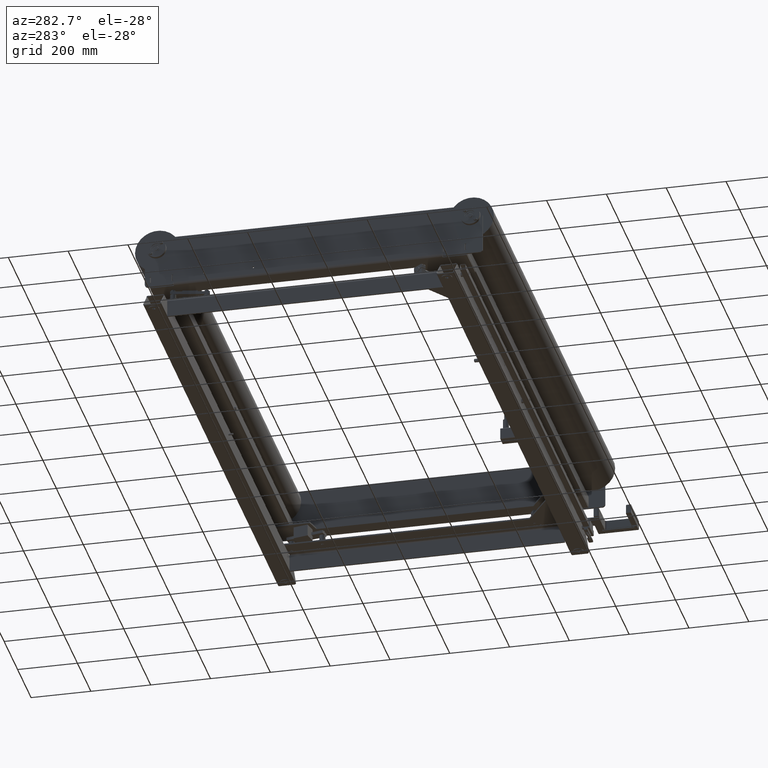
[diagram: clean part render]
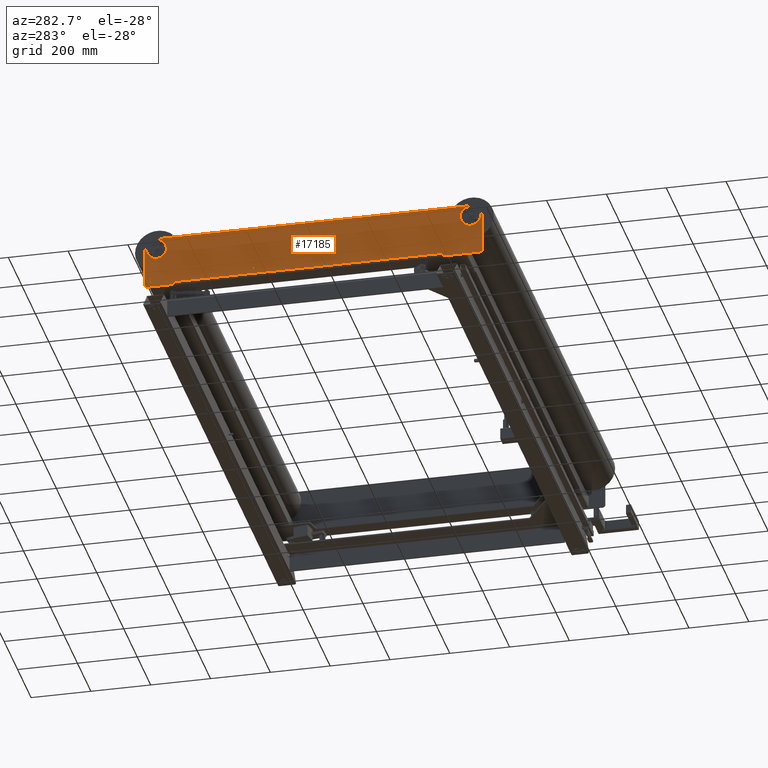
[diagram: same view with one face highlighted and labeled with its STEP entity id]
A machine part, auxiliary view. The second image highlights one B-rep face of the part: STEP entity #17185.
In plain terms, the highlighted planar face has unit normal (1, 0, 0).
Its self-contained STEP definition (entity closure, byte-faithful):
#15725=CARTESIAN_POINT('',(59.898830470336144,192.677669529663690,-4.0));
#15726=VERTEX_POINT('',#15725);
#15742=CARTESIAN_POINT('',(54.745830470336138,192.677669529663690,-4.0));
#15743=VERTEX_POINT('',#15742);
#15750=CARTESIAN_POINT('',(57.322330470336141,192.677669529663690,-4.0));
#15751=DIRECTION('',(0.0,0.0,1.0));
#15752=DIRECTION('',(1.0,0.0,0.0));
#15753=AXIS2_PLACEMENT_3D('',#15750,#15751,#15752);
#15754=CIRCLE('',#15753,2.576500000000000);
#15755=EDGE_CURVE('',#15726,#15743,#15754,.T.);
#15767=CARTESIAN_POINT('',(59.898830470336314,-892.677669529663720,-4.0));
#15768=VERTEX_POINT('',#15767);
#15784=CARTESIAN_POINT('',(54.745830470336308,-892.677669529663720,-4.0));
#15785=VERTEX_POINT('',#15784);
#15792=CARTESIAN_POINT('',(57.322330470336311,-892.677669529663720,-4.0));
#15793=DIRECTION('',(0.0,0.0,1.0));
#15794=DIRECTION('',(1.0,0.0,0.0));
#15795=AXIS2_PLACEMENT_3D('',#15792,#15793,#15794);
#15796=CIRCLE('',#15795,2.576500000000000);
#15797=EDGE_CURVE('',#15768,#15785,#15796,.T.);
#15809=CARTESIAN_POINT('',(90.101169529663522,157.322330470336310,-4.0));
#15810=VERTEX_POINT('',#15809);
#15826=CARTESIAN_POINT('',(95.254169529663514,157.322330470336310,-4.0));
#15827=VERTEX_POINT('',#15826);
#15834=CARTESIAN_POINT('',(92.677669529663518,157.322330470336310,-4.0));
#15835=DIRECTION('',(0.0,0.0,1.0));
#15836=DIRECTION('',(-1.0,0.0,0.0));
#15837=AXIS2_PLACEMENT_3D('',#15834,#15835,#15836);
#15838=CIRCLE('',#15837,2.576500000000000);
#15839=EDGE_CURVE('',#15810,#15827,#15838,.T.);
#15851=CARTESIAN_POINT('',(90.101169529663693,-857.322330470336280,-4.0));
#15852=VERTEX_POINT('',#15851);
#15868=CARTESIAN_POINT('',(95.254169529663685,-857.322330470336280,-4.0));
#15869=VERTEX_POINT('',#15868);
#15876=CARTESIAN_POINT('',(92.677669529663689,-857.322330470336280,-4.0));
#15877=DIRECTION('',(0.0,0.0,1.0));
#15878=DIRECTION('',(-1.0,0.0,0.0));
#15879=AXIS2_PLACEMENT_3D('',#15876,#15877,#15878);
#15880=CIRCLE('',#15879,2.576500000000000);
#15881=EDGE_CURVE('',#15852,#15869,#15880,.T.);
#16059=CARTESIAN_POINT('',(107.576499999999970,-635.0,-4.0));
#16060=VERTEX_POINT('',#16059);
#16069=CARTESIAN_POINT('',(102.423499999999980,-635.0,-4.0));
#16070=VERTEX_POINT('',#16069);
#16071=CARTESIAN_POINT('',(104.999999999999970,-635.0,-4.0));
#16072=DIRECTION('',(0.0,0.0,1.0));
#16073=DIRECTION('',(1.0,0.0,0.0));
#16074=AXIS2_PLACEMENT_3D('',#16071,#16072,#16073);
#16075=CIRCLE('',#16074,2.576500000000000);
#16076=EDGE_CURVE('',#16070,#16060,#16075,.T.);
#16101=CARTESIAN_POINT('',(-25.423500000000022,-718.0,-4.0));
#16102=VERTEX_POINT('',#16101);
#16111=CARTESIAN_POINT('',(-30.576500000000021,-718.0,-4.0));
#16112=VERTEX_POINT('',#16111);
#16113=CARTESIAN_POINT('',(-28.000000000000021,-718.0,-4.0));
#16114=DIRECTION('',(0.0,0.0,1.0));
#16115=DIRECTION('',(1.0,0.0,0.0));
#16116=AXIS2_PLACEMENT_3D('',#16113,#16114,#16115);
#16117=CIRCLE('',#16116,2.576500000000000);
#16118=EDGE_CURVE('',#16112,#16102,#16117,.T.);
#16143=CARTESIAN_POINT('',(-25.423500000000043,-552.0,-4.0));
#16144=VERTEX_POINT('',#16143);
#16153=CARTESIAN_POINT('',(-30.576500000000042,-552.0,-4.0));
#16154=VERTEX_POINT('',#16153);
#16155=CARTESIAN_POINT('',(-28.000000000000043,-552.0,-4.0));
#16156=DIRECTION('',(0.0,0.0,1.0));
#16157=DIRECTION('',(1.0,0.0,0.0));
#16158=AXIS2_PLACEMENT_3D('',#16155,#16156,#16157);
#16159=CIRCLE('',#16158,2.576500000000000);
#16160=EDGE_CURVE('',#16154,#16144,#16159,.T.);
#16194=CARTESIAN_POINT('',(-28.000000000000043,-552.0,-4.0));
#16195=DIRECTION('',(0.0,0.0,1.0));
#16196=DIRECTION('',(1.0,0.0,0.0));
#16197=AXIS2_PLACEMENT_3D('',#16194,#16195,#16196);
#16198=CIRCLE('',#16197,2.576500000000000);
#16199=EDGE_CURVE('',#16144,#16154,#16198,.T.);
#16218=CARTESIAN_POINT('',(-28.000000000000021,-718.0,-4.0));
#16219=DIRECTION('',(0.0,0.0,1.0));
#16220=DIRECTION('',(1.0,0.0,0.0));
#16221=AXIS2_PLACEMENT_3D('',#16218,#16219,#16220);
#16222=CIRCLE('',#16221,2.576500000000000);
#16223=EDGE_CURVE('',#16102,#16112,#16222,.T.);
#16242=CARTESIAN_POINT('',(104.999999999999970,-635.0,-4.0));
#16243=DIRECTION('',(0.0,0.0,1.0));
#16244=DIRECTION('',(1.0,0.0,0.0));
#16245=AXIS2_PLACEMENT_3D('',#16242,#16243,#16244);
#16246=CIRCLE('',#16245,2.576500000000000);
#16247=EDGE_CURVE('',#16060,#16070,#16246,.T.);
#16363=CARTESIAN_POINT('',(-46.000000000000007,79.899999999999949,-4.000000000000000));
#16364=VERTEX_POINT('',#16363);
#16371=CARTESIAN_POINT('',(-46.000000000000007,84.899999999999949,-4.000000000000000));
#16372=VERTEX_POINT('',#16371);
#16373=CARTESIAN_POINT('',(-46.000000000000007,84.899999999999949,-4.000000000000000));
#16374=DIRECTION('',(0.0,-1.0,0.0));
#16375=VECTOR('',#16374,5.0);
#16376=LINE('',#16373,#16375);
#16377=EDGE_CURVE('',#16372,#16364,#16376,.T.);
#16402=CARTESIAN_POINT('',(-24.000000000000021,84.899999999999977,-4.000000000000000));
#16403=VERTEX_POINT('',#16402);
#16404=CARTESIAN_POINT('',(-24.000000000000021,84.899999999999977,-4.000000000000000));
#16405=DIRECTION('',(-1.0,0.0,0.0));
#16406=VECTOR('',#16405,21.999999999999986);
#16407=LINE('',#16404,#16406);
#16408=EDGE_CURVE('',#16403,#16372,#16407,.T.);
#16433=CARTESIAN_POINT('',(-24.000000000000014,79.899999999999949,-4.000000000000000));
#16434=VERTEX_POINT('',#16433);
#16435=CARTESIAN_POINT('',(-24.000000000000014,79.899999999999949,-4.000000000000000));
#16436=DIRECTION('',(0.0,1.0,0.0));
#16437=VECTOR('',#16436,5.000000000000028);
#16438=LINE('',#16435,#16437);
#16439=EDGE_CURVE('',#16434,#16403,#16438,.T.);
#16462=CARTESIAN_POINT('',(-46.000000000000007,79.899999999999949,-4.000000000000000));
#16463=DIRECTION('',(1.0,0.0,0.0));
#16464=VECTOR('',#16463,21.999999999999993);
#16465=LINE('',#16462,#16464);
#16466=EDGE_CURVE('',#16364,#16434,#16465,.T.);
#16487=CARTESIAN_POINT('',(-46.000000000000007,-900.100000000000020,-4.000000000000000));
#16488=VERTEX_POINT('',#16487);
#16495=CARTESIAN_POINT('',(-46.000000000000007,-895.100000000000020,-4.000000000000000));
#16496=VERTEX_POINT('',#16495);
#16497=CARTESIAN_POINT('',(-46.000000000000007,-895.100000000000020,-4.000000000000000));
#16498=DIRECTION('',(0.0,-1.0,0.0));
#16499=VECTOR('',#16498,5.0);
#16500=LINE('',#16497,#16499);
#16501=EDGE_CURVE('',#16496,#16488,#16500,.T.);
#16526=CARTESIAN_POINT('',(-24.000000000000135,-895.100000000000020,-4.000000000000000));
#16527=VERTEX_POINT('',#16526);
#16528=CARTESIAN_POINT('',(-24.000000000000135,-895.100000000000020,-4.000000000000000));
#16529=DIRECTION('',(-1.0,0.0,0.0));
#16530=VECTOR('',#16529,21.999999999999872);
#16531=LINE('',#16528,#16530);
#16532=EDGE_CURVE('',#16527,#16496,#16531,.T.);
#16557=CARTESIAN_POINT('',(-24.000000000000135,-900.100000000000020,-4.000000000000000));
#16558=VERTEX_POINT('',#16557);
#16559=CARTESIAN_POINT('',(-24.000000000000135,-900.100000000000020,-4.000000000000000));
#16560=DIRECTION('',(0.0,1.0,0.0));
#16561=VECTOR('',#16560,5.0);
#16562=LINE('',#16559,#16561);
#16563=EDGE_CURVE('',#16558,#16527,#16562,.T.);
#16586=CARTESIAN_POINT('',(-46.000000000000007,-900.100000000000020,-4.000000000000000));
#16587=DIRECTION('',(1.0,0.0,0.0));
#16588=VECTOR('',#16587,21.999999999999872);
#16589=LINE('',#16586,#16588);
#16590=EDGE_CURVE('',#16488,#16558,#16589,.T.);
#16611=CARTESIAN_POINT('',(-46.000000000000007,-824.900000000000090,-4.000000000000000));
#16612=VERTEX_POINT('',#16611);
#16619=CARTESIAN_POINT('',(-46.000000000000007,-819.900000000000090,-4.000000000000000));
#16620=VERTEX_POINT('',#16619);
#16621=CARTESIAN_POINT('',(-46.000000000000007,-819.900000000000090,-4.000000000000000));
#16622=DIRECTION('',(0.0,-1.0,0.0));
#16623=VECTOR('',#16622,5.0);
#16624=LINE('',#16621,#16623);
#16625=EDGE_CURVE('',#16620,#16612,#16624,.T.);
#16650=CARTESIAN_POINT('',(-24.000000000000121,-819.899999999999980,-4.000000000000000));
#16651=VERTEX_POINT('',#16650);
#16652=CARTESIAN_POINT('',(-24.000000000000121,-819.899999999999980,-4.000000000000000));
#16653=DIRECTION('',(-1.0,0.0,0.0));
#16654=VECTOR('',#16653,21.999999999999886);
#16655=LINE('',#16652,#16654);
#16656=EDGE_CURVE('',#16651,#16620,#16655,.T.);
#16681=CARTESIAN_POINT('',(-24.000000000000128,-824.900000000000090,-4.000000000000000));
#16682=VERTEX_POINT('',#16681);
#16683=CARTESIAN_POINT('',(-24.000000000000128,-824.900000000000090,-4.000000000000000));
#16684=DIRECTION('',(0.0,1.0,0.0));
#16685=VECTOR('',#16684,5.000000000000114);
#16686=LINE('',#16683,#16685);
#16687=EDGE_CURVE('',#16682,#16651,#16686,.T.);
#16710=CARTESIAN_POINT('',(-46.000000000000007,-824.900000000000090,-4.000000000000000));
#16711=DIRECTION('',(1.0,0.0,0.0));
#16712=VECTOR('',#16711,21.999999999999879);
#16713=LINE('',#16710,#16712);
#16714=EDGE_CURVE('',#16612,#16682,#16713,.T.);
#16735=CARTESIAN_POINT('',(-46.000000000000007,155.099999999999990,-4.000000000000000));
#16736=VERTEX_POINT('',#16735);
#16743=CARTESIAN_POINT('',(-46.000000000000007,160.099999999999990,-4.000000000000000));
#16744=VERTEX_POINT('',#16743);
#16745=CARTESIAN_POINT('',(-46.000000000000007,160.099999999999990,-4.000000000000000));
#16746=DIRECTION('',(0.0,-1.0,0.0));
#16747=VECTOR('',#16746,5.0);
#16748=LINE('',#16745,#16747);
#16749=EDGE_CURVE('',#16744,#16736,#16748,.T.);
#16774=CARTESIAN_POINT('',(-24.000000000000014,160.099999999999990,-4.000000000000000));
#16775=VERTEX_POINT('',#16774);
#16776=CARTESIAN_POINT('',(-24.000000000000014,160.099999999999990,-4.000000000000000));
#16777=DIRECTION('',(-1.0,0.0,0.0));
#16778=VECTOR('',#16777,21.999999999999993);
#16779=LINE('',#16776,#16778);
#16780=EDGE_CURVE('',#16775,#16744,#16779,.T.);
#16805=CARTESIAN_POINT('',(-24.000000000000007,155.099999999999990,-4.000000000000000));
#16806=VERTEX_POINT('',#16805);
#16807=CARTESIAN_POINT('',(-24.000000000000007,155.099999999999990,-4.000000000000000));
#16808=DIRECTION('',(0.0,1.0,0.0));
#16809=VECTOR('',#16808,5.0);
#16810=LINE('',#16807,#16809);
#16811=EDGE_CURVE('',#16806,#16775,#16810,.T.);
#16834=CARTESIAN_POINT('',(-46.000000000000007,155.099999999999990,-4.000000000000000));
#16835=DIRECTION('',(1.0,0.0,0.0));
#16836=VECTOR('',#16835,22.0);
#16837=LINE('',#16834,#16836);
#16838=EDGE_CURVE('',#16736,#16806,#16837,.T.);
#16849=CARTESIAN_POINT('',(-55.0,-820.0,-4.000000000000000));
#16850=VERTEX_POINT('',#16849);
#16851=CARTESIAN_POINT('',(-60.0,-825.0,-4.0));
#16852=VERTEX_POINT('',#16851);
#16853=CARTESIAN_POINT('',(-55.0,-825.0,-4.000000000000000));
#16854=DIRECTION('',(0.0,0.0,1.000000000000000));
#16855=DIRECTION('',(-0.707106781186547,0.707106781186547,0.0));
#16856=AXIS2_PLACEMENT_3D('',#16853,#16854,#16855);
#16857=CIRCLE('',#16856,4.999999999999999);
#16858=EDGE_CURVE('',#16850,#16852,#16857,.T.);
#16892=CARTESIAN_POINT('',(-60.0,-905.0,-4.0));
#16893=VERTEX_POINT('',#16892);
#16894=CARTESIAN_POINT('',(-60.0,-825.0,-4.0));
#16895=DIRECTION('',(0.0,-1.0,0.0));
#16896=VECTOR('',#16895,80.0);
#16897=LINE('',#16894,#16896);
#16898=EDGE_CURVE('',#16852,#16893,#16897,.T.);
#16917=CARTESIAN_POINT('',(12.986773502407509,-75.0,-4.000000000000000));
#16918=DIRECTION('',(0.0,0.0,1.0));
#16919=DIRECTION('',(1.0,0.0,0.0));
#16920=AXIS2_PLACEMENT_3D('',#16917,#16918,#16919);
#16921=PLANE('',#16920);
#16922=ORIENTED_EDGE('',*,*,#16858,.F.);
#16923=CARTESIAN_POINT('',(-50.000000000000121,-820.0,-4.000000000000000));
#16924=VERTEX_POINT('',#16923);
#16925=CARTESIAN_POINT('',(-55.0,-820.0,-4.000000000000000));
#16926=DIRECTION('',(1.0,0.0,0.0));
#16927=VECTOR('',#16926,4.999999999999879);
#16928=LINE('',#16925,#16927);
#16929=EDGE_CURVE('',#16850,#16924,#16928,.T.);
#16930=ORIENTED_EDGE('',*,*,#16929,.T.);
#16931=CARTESIAN_POINT('',(-50.000000000000121,-819.649999999999860,-4.000000000000000));
#16932=VERTEX_POINT('',#16931);
#16933=CARTESIAN_POINT('',(-50.000000000000121,-820.0,-4.000000000000000));
#16934=DIRECTION('',(0.0,1.0,0.0));
#16935=VECTOR('',#16934,0.350000000000136);
#16936=LINE('',#16933,#16935);
#16937=EDGE_CURVE('',#16924,#16932,#16936,.T.);
#16938=ORIENTED_EDGE('',*,*,#16937,.T.);
#16939=CARTESIAN_POINT('',(-50.000000000000121,79.650000000000006,-4.000000000000000));
#16940=VERTEX_POINT('',#16939);
#16941=CARTESIAN_POINT('',(-50.000000000000121,79.650000000000006,-4.000000000000000));
#16942=DIRECTION('',(0.0,-1.0,0.0));
#16943=VECTOR('',#16942,899.299999999999840);
#16944=LINE('',#16941,#16943);
#16945=EDGE_CURVE('',#16940,#16932,#16944,.T.);
#16946=ORIENTED_EDGE('',*,*,#16945,.F.);
#16947=CARTESIAN_POINT('',(-50.000000000000121,80.0,-4.000000000000000));
#16948=VERTEX_POINT('',#16947);
#16949=CARTESIAN_POINT('',(-50.000000000000121,79.650000000000006,-4.000000000000000));
#16950=DIRECTION('',(0.0,1.0,0.0));
#16951=VECTOR('',#16950,0.349999999999994);
#16952=LINE('',#16949,#16951);
#16953=EDGE_CURVE('',#16940,#16948,#16952,.T.);
#16954=ORIENTED_EDGE('',*,*,#16953,.T.);
#16955=CARTESIAN_POINT('',(-55.0,80.0,-4.000000000000000));
#16956=VERTEX_POINT('',#16955);
#16957=CARTESIAN_POINT('',(-50.000000000000121,80.0,-4.000000000000000));
#16958=DIRECTION('',(-1.0,0.0,0.0));
#16959=VECTOR('',#16958,4.999999999999879);
#16960=LINE('',#16957,#16959);
#16961=EDGE_CURVE('',#16948,#16956,#16960,.T.);
#16962=ORIENTED_EDGE('',*,*,#16961,.T.);
#16963=CARTESIAN_POINT('',(-60.0,85.0,-4.0));
#16964=VERTEX_POINT('',#16963);
#16965=CARTESIAN_POINT('',(-55.0,85.0,-4.000000000000000));
#16966=DIRECTION('',(0.0,0.0,1.000000000000000));
#16967=DIRECTION('',(-0.707106781186547,-0.707106781186547,0.0));
#16968=AXIS2_PLACEMENT_3D('',#16965,#16966,#16967);
#16969=CIRCLE('',#16968,4.999999999999999);
#16970=EDGE_CURVE('',#16964,#16956,#16969,.T.);
#16971=ORIENTED_EDGE('',*,*,#16970,.F.);
#16972=CARTESIAN_POINT('',(-60.0,205.0,-4.0));
#16973=VERTEX_POINT('',#16972);
#16974=CARTESIAN_POINT('',(-60.0,205.0,-4.0));
#16975=DIRECTION('',(0.0,-1.0,0.0));
#16976=VECTOR('',#16975,120.0);
#16977=LINE('',#16974,#16976);
#16978=EDGE_CURVE('',#16973,#16964,#16977,.T.);
#16979=ORIENTED_EDGE('',*,*,#16978,.F.);
#16980=CARTESIAN_POINT('',(-50.0,215.0,-4.0));
#16981=VERTEX_POINT('',#16980);
#16982=CARTESIAN_POINT('',(-50.0,205.0,-4.000000000000000));
#16983=DIRECTION('',(0.0,0.0,1.000000000000000));
#16984=DIRECTION('',(-0.707106781186547,0.707106781186547,0.0));
#16985=AXIS2_PLACEMENT_3D('',#16982,#16983,#16984);
#16986=CIRCLE('',#16985,9.999999999999998);
#16987=EDGE_CURVE('',#16981,#16973,#16986,.T.);
#16988=ORIENTED_EDGE('',*,*,#16987,.F.);
#16989=CARTESIAN_POINT('',(74.644660940672480,215.0,-4.0));
#16990=VERTEX_POINT('',#16989);
#16991=CARTESIAN_POINT('',(74.644660940672480,215.0,-4.0));
#16992=DIRECTION('',(-1.0,0.0,0.0));
#16993=VECTOR('',#16992,124.644660940672480);
#16994=LINE('',#16991,#16993);
#16995=EDGE_CURVE('',#16990,#16981,#16994,.T.);
#16996=ORIENTED_EDGE('',*,*,#16995,.F.);
#16997=CARTESIAN_POINT('',(78.180194846605218,206.464466094067320,-4.0));
#16998=VERTEX_POINT('',#16997);
#16999=CARTESIAN_POINT('',(74.644660940672480,210.000000000000030,-4.000000000000000));
#17000=DIRECTION('',(0.0,0.0,1.0));
#17001=DIRECTION('',(0.0,1.0,0.0));
#17002=AXIS2_PLACEMENT_3D('',#16999,#17000,#17001);
#17003=CIRCLE('',#17002,5.0);
#17004=EDGE_CURVE('',#16998,#16990,#17003,.T.);
#17005=ORIENTED_EDGE('',*,*,#17004,.F.);
#17006=CARTESIAN_POINT('',(60.857864376268878,189.142135623730950,-4.0));
#17007=VERTEX_POINT('',#17006);
#17008=CARTESIAN_POINT('',(78.180194846605218,206.464466094067320,-4.0));
#17009=DIRECTION('',(-0.707106781186547,-0.707106781186548,0.0));
#17010=VECTOR('',#17009,24.497474683058389);
#17011=LINE('',#17008,#17010);
#17012=EDGE_CURVE('',#16998,#17007,#17011,.T.);
#17013=ORIENTED_EDGE('',*,*,#17012,.T.);
#17014=CARTESIAN_POINT('',(89.142135623730780,160.857864376269050,-4.0));
#17015=VERTEX_POINT('',#17014);
#17016=CARTESIAN_POINT('',(74.999999999999829,175.0,-4.0));
#17017=DIRECTION('',(0.0,0.0,1.0));
#17018=DIRECTION('',(1.0,0.0,0.0));
#17019=AXIS2_PLACEMENT_3D('',#17016,#17017,#17018);
#17020=CIRCLE('',#17019,20.0);
#17021=EDGE_CURVE('',#17007,#17015,#17020,.T.);
#17022=ORIENTED_EDGE('',*,*,#17021,.T.);
#17023=CARTESIAN_POINT('',(106.464466094067110,178.180194846605390,-4.0));
#17024=VERTEX_POINT('',#17023);
#17025=CARTESIAN_POINT('',(89.142135623730780,160.857864376269050,-4.0));
#17026=DIRECTION('',(0.707106781186547,0.707106781186548,0.0));
#17027=VECTOR('',#17026,24.497474683058353);
#17028=LINE('',#17025,#17027);
#17029=EDGE_CURVE('',#17015,#17024,#17028,.T.);
#17030=ORIENTED_EDGE('',*,*,#17029,.T.);
#17031=CARTESIAN_POINT('',(114.999999999999870,174.644660940672620,-4.0));
#17032=VERTEX_POINT('',#17031);
#17033=CARTESIAN_POINT('',(109.999999999999830,174.644660940672620,-4.000000000000000));
#17034=DIRECTION('',(0.0,0.0,1.0));
#17035=DIRECTION('',(1.0,0.0,0.0));
#17036=AXIS2_PLACEMENT_3D('',#17033,#17034,#17035);
#17037=CIRCLE('',#17036,5.0);
#17038=EDGE_CURVE('',#17032,#17024,#17037,.T.);
#17039=ORIENTED_EDGE('',*,*,#17038,.F.);
#17040=CARTESIAN_POINT('',(115.0,-874.644660940673020,-4.0));
#17041=VERTEX_POINT('',#17040);
#17042=CARTESIAN_POINT('',(115.0,-874.644660940673020,-4.0));
#17043=DIRECTION('',(0.0,1.0,0.0));
#17044=VECTOR('',#17043,1049.289321881345600);
#17045=LINE('',#17042,#17044);
#17046=EDGE_CURVE('',#17041,#17032,#17045,.T.);
#17047=ORIENTED_EDGE('',*,*,#17046,.F.);
#17048=CARTESIAN_POINT('',(106.464466094067300,-878.180194846605670,-4.0));
#17049=VERTEX_POINT('',#17048);
#17050=CARTESIAN_POINT('',(109.999999999999960,-874.644660940673020,-4.000000000000000));
#17051=DIRECTION('',(0.0,0.0,1.0));
#17052=DIRECTION('',(1.0,0.0,0.0));
#17053=AXIS2_PLACEMENT_3D('',#17050,#17051,#17052);
#17054=CIRCLE('',#17053,5.0);
#17055=EDGE_CURVE('',#17049,#17041,#17054,.T.);
#17056=ORIENTED_EDGE('',*,*,#17055,.F.);
#17057=CARTESIAN_POINT('',(89.142135623730965,-860.857864376269160,-4.0));
#17058=VERTEX_POINT('',#17057);
#17059=CARTESIAN_POINT('',(106.464466094067300,-878.180194846605670,-4.0));
#17060=DIRECTION('',(-0.707106781186544,0.707106781186551,0.0));
#17061=VECTOR('',#17060,24.497474683058488);
#17062=LINE('',#17059,#17061);
#17063=EDGE_CURVE('',#17049,#17058,#17062,.T.);
#17064=ORIENTED_EDGE('',*,*,#17063,.T.);
#17065=CARTESIAN_POINT('',(60.857864376269006,-889.142135623730840,-4.0));
#17066=VERTEX_POINT('',#17065);
#17067=CARTESIAN_POINT('',(75.0,-875.0,-4.0));
#17068=DIRECTION('',(0.0,0.0,1.0));
#17069=DIRECTION('',(1.0,0.0,0.0));
#17070=AXIS2_PLACEMENT_3D('',#17067,#17068,#17069);
#17071=CIRCLE('',#17070,20.0);
#17072=EDGE_CURVE('',#17058,#17066,#17071,.T.);
#17073=ORIENTED_EDGE('',*,*,#17072,.T.);
#17074=CARTESIAN_POINT('',(78.180194846605303,-906.464466094067350,-4.0));
#17075=VERTEX_POINT('',#17074);
#17076=CARTESIAN_POINT('',(60.857864376269006,-889.142135623730840,-4.0));
#17077=DIRECTION('',(0.707106781186543,-0.707106781186552,0.0));
#17078=VECTOR('',#17077,24.497474683058456);
#17079=LINE('',#17076,#17078);
#17080=EDGE_CURVE('',#17066,#17075,#17079,.T.);
#17081=ORIENTED_EDGE('',*,*,#17080,.T.);
#17082=CARTESIAN_POINT('',(74.644660940672495,-915.0,-4.0));
#17083=VERTEX_POINT('',#17082);
#17084=CARTESIAN_POINT('',(74.644660940672495,-910.0,-4.000000000000000));
#17085=DIRECTION('',(0.0,0.0,1.0));
#17086=DIRECTION('',(0.0,-1.0,0.0));
#17087=AXIS2_PLACEMENT_3D('',#17084,#17085,#17086);
#17088=CIRCLE('',#17087,5.0);
#17089=EDGE_CURVE('',#17083,#17075,#17088,.T.);
#17090=ORIENTED_EDGE('',*,*,#17089,.F.);
#17091=CARTESIAN_POINT('',(-50.0,-915.0,-4.0));
#17092=VERTEX_POINT('',#17091);
#17093=CARTESIAN_POINT('',(-50.0,-915.0,-4.0));
#17094=DIRECTION('',(1.0,0.0,0.0));
#17095=VECTOR('',#17094,124.644660940672490);
#17096=LINE('',#17093,#17095);
#17097=EDGE_CURVE('',#17092,#17083,#17096,.T.);
#17098=ORIENTED_EDGE('',*,*,#17097,.F.);
#17099=CARTESIAN_POINT('',(-50.0,-905.0,-4.000000000000000));
#17100=DIRECTION('',(0.0,0.0,1.000000000000000));
#17101=DIRECTION('',(-0.707106781186547,-0.707106781186547,0.0));
#17102=AXIS2_PLACEMENT_3D('',#17099,#17100,#17101);
#17103=CIRCLE('',#17102,9.999999999999998);
#17104=EDGE_CURVE('',#16893,#17092,#17103,.T.);
#17105=ORIENTED_EDGE('',*,*,#17104,.F.);
#17106=ORIENTED_EDGE('',*,*,#16898,.F.);
#17107=EDGE_LOOP('',(#16922,#16930,#16938,#16946,#16954,#16962,#16971,#16979,#16988,#16996,#17005,#17013,#17022,#17030,#17039,#17047,#17056,#17064,#17073,#17081,#17090,#17098,#17105,#17106));
#17108=FACE_OUTER_BOUND('',#17107,.T.);
#17109=ORIENTED_EDGE('',*,*,#16199,.T.);
#17110=ORIENTED_EDGE('',*,*,#16160,.T.);
#17111=EDGE_LOOP('',(#17109,#17110));
#17112=FACE_BOUND('',#17111,.T.);
#17113=ORIENTED_EDGE('',*,*,#16223,.T.);
#17114=ORIENTED_EDGE('',*,*,#16118,.T.);
#17115=EDGE_LOOP('',(#17113,#17114));
#17116=FACE_BOUND('',#17115,.T.);
#17117=ORIENTED_EDGE('',*,*,#16247,.T.);
#17118=ORIENTED_EDGE('',*,*,#16076,.T.);
#17119=EDGE_LOOP('',(#17117,#17118));
#17120=FACE_BOUND('',#17119,.T.);
#17121=ORIENTED_EDGE('',*,*,#16377,.T.);
#17122=ORIENTED_EDGE('',*,*,#16466,.T.);
#17123=ORIENTED_EDGE('',*,*,#16439,.T.);
#17124=ORIENTED_EDGE('',*,*,#16408,.T.);
#17125=EDGE_LOOP('',(#17121,#17122,#17123,#17124));
#17126=FACE_BOUND('',#17125,.T.);
#17127=ORIENTED_EDGE('',*,*,#16501,.T.);
#17128=ORIENTED_EDGE('',*,*,#16590,.T.);
#17129=ORIENTED_EDGE('',*,*,#16563,.T.);
#17130=ORIENTED_EDGE('',*,*,#16532,.T.);
#17131=EDGE_LOOP('',(#17127,#17128,#17129,#17130));
#17132=FACE_BOUND('',#17131,.T.);
#17133=ORIENTED_EDGE('',*,*,#16625,.T.);
#17134=ORIENTED_EDGE('',*,*,#16714,.T.);
#17135=ORIENTED_EDGE('',*,*,#16687,.T.);
#17136=ORIENTED_EDGE('',*,*,#16656,.T.);
#17137=EDGE_LOOP('',(#17133,#17134,#17135,#17136));
#17138=FACE_BOUND('',#17137,.T.);
#17139=ORIENTED_EDGE('',*,*,#16749,.T.);
#17140=ORIENTED_EDGE('',*,*,#16838,.T.);
#17141=ORIENTED_EDGE('',*,*,#16811,.T.);
#17142=ORIENTED_EDGE('',*,*,#16780,.T.);
#17143=EDGE_LOOP('',(#17139,#17140,#17141,#17142));
#17144=FACE_BOUND('',#17143,.T.);
#17145=CARTESIAN_POINT('',(57.322330470336141,192.677669529663690,-4.0));
#17146=DIRECTION('',(0.0,0.0,1.0));
#17147=DIRECTION('',(1.0,0.0,0.0));
#17148=AXIS2_PLACEMENT_3D('',#17145,#17146,#17147);
#17149=CIRCLE('',#17148,2.576500000000000);
#17150=EDGE_CURVE('',#15743,#15726,#17149,.T.);
#17151=ORIENTED_EDGE('',*,*,#17150,.T.);
#17152=ORIENTED_EDGE('',*,*,#15755,.T.);
#17153=EDGE_LOOP('',(#17151,#17152));
#17154=FACE_BOUND('',#17153,.T.);
#17155=CARTESIAN_POINT('',(57.322330470336311,-892.677669529663720,-4.0));
#17156=DIRECTION('',(0.0,0.0,1.0));
#17157=DIRECTION('',(1.0,0.0,0.0));
#17158=AXIS2_PLACEMENT_3D('',#17155,#17156,#17157);
#17159=CIRCLE('',#17158,2.576500000000000);
#17160=EDGE_CURVE('',#15785,#15768,#17159,.T.);
#17161=ORIENTED_EDGE('',*,*,#17160,.T.);
#17162=ORIENTED_EDGE('',*,*,#15797,.T.);
#17163=EDGE_LOOP('',(#17161,#17162));
#17164=FACE_BOUND('',#17163,.T.);
#17165=CARTESIAN_POINT('',(92.677669529663518,157.322330470336310,-4.0));
#17166=DIRECTION('',(0.0,0.0,1.0));
#17167=DIRECTION('',(-1.0,0.0,0.0));
#17168=AXIS2_PLACEMENT_3D('',#17165,#17166,#17167);
#17169=CIRCLE('',#17168,2.576500000000000);
#17170=EDGE_CURVE('',#15827,#15810,#17169,.T.);
#17171=ORIENTED_EDGE('',*,*,#17170,.T.);
#17172=ORIENTED_EDGE('',*,*,#15839,.T.);
#17173=EDGE_LOOP('',(#17171,#17172));
#17174=FACE_BOUND('',#17173,.T.);
#17175=CARTESIAN_POINT('',(92.677669529663689,-857.322330470336280,-4.0));
#17176=DIRECTION('',(0.0,0.0,1.0));
#17177=DIRECTION('',(-1.0,0.0,0.0));
#17178=AXIS2_PLACEMENT_3D('',#17175,#17176,#17177);
#17179=CIRCLE('',#17178,2.576500000000000);
#17180=EDGE_CURVE('',#15869,#15852,#17179,.T.);
#17181=ORIENTED_EDGE('',*,*,#17180,.T.);
#17182=ORIENTED_EDGE('',*,*,#15881,.T.);
#17183=EDGE_LOOP('',(#17181,#17182));
#17184=FACE_BOUND('',#17183,.T.);
#17185=ADVANCED_FACE('',(#17108,#17112,#17116,#17120,#17126,#17132,#17138,#17144,#17154,#17164,#17174,#17184),#16921,.F.);